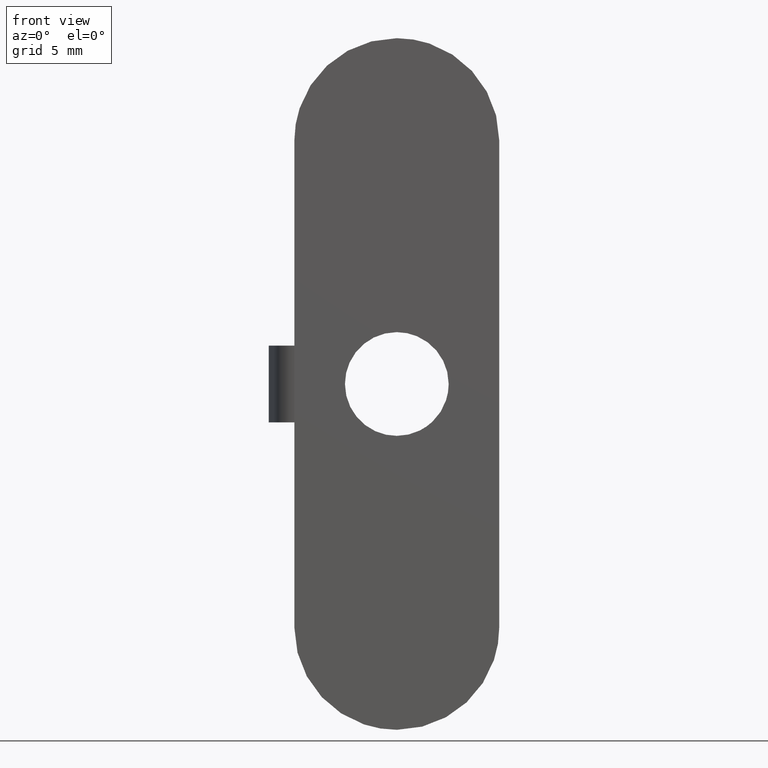
[diagram: clean part render]
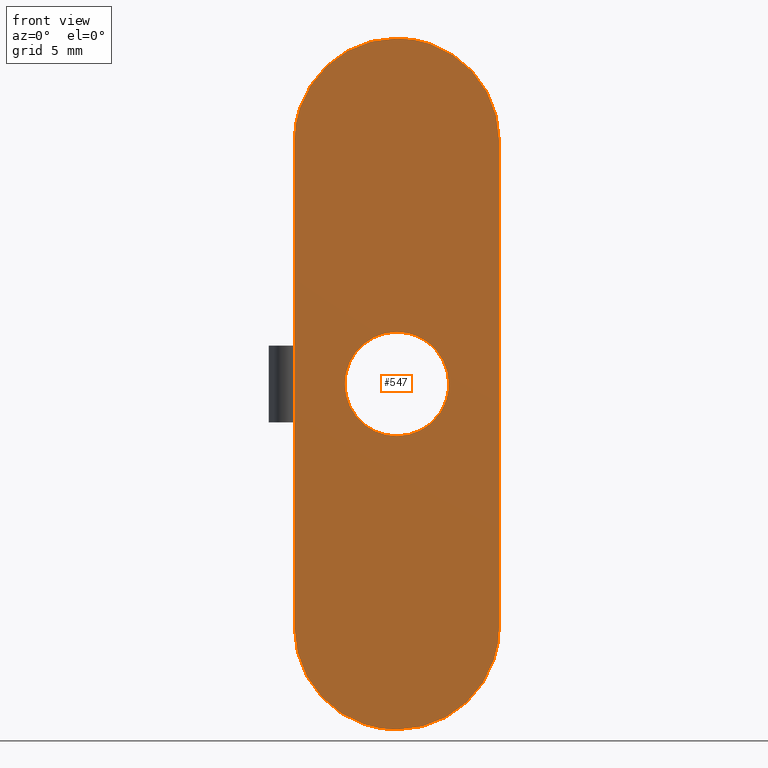
[diagram: same view with one face highlighted and labeled with its STEP entity id]
A machine part, front view. The second image highlights one B-rep face of the part: STEP entity #547.
In plain terms, the highlighted face is a freeform B-spline surface patch.
Its self-contained STEP definition (entity closure, byte-faithful):
#70=CARTESIAN_POINT('',(3.092400469154631,-1.599991000001859,2.615255294156009));
#71=VERTEX_POINT('',#70);
#72=CARTESIAN_POINT('',(0.0,-1.599990999999965,4.050000000000000));
#73=VERTEX_POINT('',#72);
#74=CARTESIAN_POINT('',(3.092400469154631,-1.599991000001859,2.615255294156009));
#75=CARTESIAN_POINT('',(2.820376977691375,-1.599991000001693,2.937277410438692));
#76=CARTESIAN_POINT('',(2.300836514893741,-1.599991000001375,3.385744414825498));
#77=CARTESIAN_POINT('',(1.493138806899813,-1.599991000000878,3.787413040616861));
#78=CARTESIAN_POINT('',(0.769694009481361,-1.599991000000438,3.999427392969075));
#79=CARTESIAN_POINT('',(0.274895964038809,-1.599991000000127,4.050034765647252));
#80=CARTESIAN_POINT('',(0.0,-1.599990999999965,4.050000000000000));
#81=B_SPLINE_CURVE_WITH_KNOTS('',3,(#74,#75,#76,#77,#78,#79,#80),.UNSPECIFIED.,.F.,.U.,(4,1,1,1,4),(0.000000015928992,1.264529401427014,2.034226246631516,2.693985453096188,3.518673681886411),.UNSPECIFIED.);
#82=EDGE_CURVE('',#71,#73,#81,.T.);
#84=CARTESIAN_POINT('',(-4.049999999999974,-1.599990999999965,-0.000000458331463));
#85=VERTEX_POINT('',#84);
#86=CARTESIAN_POINT('',(0.0,-1.599990999999965,4.050000000000000));
#87=CARTESIAN_POINT('',(-0.381054484313349,-1.599990999999965,4.050140602619687));
#88=CARTESIAN_POINT('',(-1.010515882282830,-1.599990999999965,3.960478360670183));
#89=CARTESIAN_POINT('',(-1.800263474168595,-1.599990999999965,3.650198816271311));
#90=CARTESIAN_POINT('',(-2.453598175635486,-1.599990999999961,3.253170430365296));
#91=CARTESIAN_POINT('',(-3.046438682187678,-1.599990999999966,2.715894467325104));
#92=CARTESIAN_POINT('',(-3.501115867815219,-1.599990999999963,2.078566816770383));
#93=CARTESIAN_POINT('',(-3.827842104405860,-1.599990999999986,1.387769674100269));
#94=CARTESIAN_POINT('',(-4.010294287966048,-1.599990999999902,0.712385562720853));
#95=CARTESIAN_POINT('',(-4.050008687073341,-1.599991000000036,0.215367743600465));
#96=CARTESIAN_POINT('',(-4.049999999999974,-1.599990999999965,-0.000000458331463));
#97=B_SPLINE_CURVE_WITH_KNOTS('',3,(#86,#87,#88,#89,#90,#91,#92,#93,#94,#95,#96),.UNSPECIFIED.,.F.,.U.,(4,1,1,1,1,1,1,1,4),(0.000000055227183,1.143122650493126,1.888650764688554,2.534773102149365,3.429381718679102,4.274308838590464,4.870726688445481,5.715652830963844,6.361765298970928),.UNSPECIFIED.);
#98=EDGE_CURVE('',#73,#85,#97,.T.);
#100=CARTESIAN_POINT('',(0.0,-1.599990999999965,-4.050000000000000));
#101=VERTEX_POINT('',#100);
#102=CARTESIAN_POINT('',(-4.049999999999974,-1.599990999999965,-0.000000458331463));
#103=CARTESIAN_POINT('',(-4.050201243229171,-1.599990999999974,-0.414195219986316));
#104=CARTESIAN_POINT('',(-3.937173920950953,-1.599990999999945,-1.143030930930646));
#105=CARTESIAN_POINT('',(-3.560234583896198,-1.599990999999985,-1.979403110114198));
#106=CARTESIAN_POINT('',(-3.143165495486218,-1.599990999999945,-2.579282978451702));
#107=CARTESIAN_POINT('',(-2.661637303840499,-1.599990999999951,-3.085117777227258));
#108=CARTESIAN_POINT('',(-2.078568684010875,-1.599991000000042,-3.501118182822238));
#109=CARTESIAN_POINT('',(-1.432818437939988,-1.599990999999898,-3.806521129870342));
#110=CARTESIAN_POINT('',(-0.762065598154865,-1.599990999999986,-4.001024033879598));
#111=CARTESIAN_POINT('',(-0.265070882309666,-1.599990999999965,-4.050037229062435));
#112=CARTESIAN_POINT('',(0.0,-1.599990999999965,-4.050000000000000));
#113=B_SPLINE_CURVE_WITH_KNOTS('',3,(#102,#103,#104,#105,#106,#107,#108,#109,#110,#111,#112),.UNSPECIFIED.,.F.,.U.,(4,1,1,1,1,1,1,1,4),(0.000000055387317,1.242531855871150,2.186866573110421,2.733573998402191,3.429381440726923,4.274308491726776,4.870726292973097,5.566556277256678,6.361764782321302),.UNSPECIFIED.);
#114=EDGE_CURVE('',#85,#101,#113,.T.);
#116=CARTESIAN_POINT('',(2.787835918983155,-1.599990999997954,-2.937766151683632));
#117=VERTEX_POINT('',#116);
#118=CARTESIAN_POINT('',(0.0,-1.599990999999965,-4.050000000000000));
#119=CARTESIAN_POINT('',(0.272254321299276,-1.599990999999766,-4.050041422317981));
#120=CARTESIAN_POINT('',(0.736667426263353,-1.599990999999435,-4.002980208834696));
#121=CARTESIAN_POINT('',(1.416976343417097,-1.599990999998945,-3.812625169096760));
#122=CARTESIAN_POINT('',(2.102919850558829,-1.599990999998443,-3.495560729496080));
#123=CARTESIAN_POINT('',(2.555550301668501,-1.599990999998125,-3.158303154968257));
#124=CARTESIAN_POINT('',(2.787835918983155,-1.599990999997954,-2.937766151683632));
#125=B_SPLINE_CURVE_WITH_KNOTS('',3,(#118,#119,#120,#121,#122,#123,#124),.UNSPECIFIED.,.F.,.U.,(4,1,1,1,4),(0.000000013875821,0.816757953015864,1.393299582913002,2.113960479790959,3.074851748193050),.UNSPECIFIED.);
#126=EDGE_CURVE('',#101,#117,#125,.T.);
#214=CARTESIAN_POINT('',(4.049999999999973,-1.599990999999965,0.000000458331472));
#215=VERTEX_POINT('',#214);
#216=CARTESIAN_POINT('',(4.049999999999973,-1.599990999999965,0.000000458331472));
#217=CARTESIAN_POINT('',(4.050147345321640,-1.599991000000244,0.385021680494588));
#218=CARTESIAN_POINT('',(3.962745837365865,-1.599991000000690,0.992037114315919));
#219=CARTESIAN_POINT('',(3.621113157875833,-1.599991000001318,1.879469827514581));
#220=CARTESIAN_POINT('',(3.312407704599532,-1.599991000001674,2.355261533687516));
#221=CARTESIAN_POINT('',(3.092400469154631,-1.599991000001859,2.615255294156009));
#222=B_SPLINE_CURVE_WITH_KNOTS('',3,(#216,#217,#218,#219,#220,#221),.UNSPECIFIED.,.F.,.U.,(4,1,1,4),(0.000000012530482,1.155009485333611,1.821353007942206,2.843092339355573),.UNSPECIFIED.);
#223=EDGE_CURVE('',#215,#71,#222,.T.);
#248=CARTESIAN_POINT('',(2.787835918983155,-1.599990999997954,-2.937766151683632));
#249=CARTESIAN_POINT('',(3.011403582672485,-1.599990999998101,-2.725693667472977));
#250=CARTESIAN_POINT('',(3.398666969683116,-1.599990999998413,-2.263382151183006));
#251=CARTESIAN_POINT('',(3.761295607858146,-1.599990999998897,-1.559207491373230));
#252=CARTESIAN_POINT('',(3.993044856083322,-1.599990999999419,-0.804578728298740));
#253=CARTESIAN_POINT('',(4.050066773174976,-1.599990999999753,-0.308152803475064));
#254=CARTESIAN_POINT('',(4.049999999999973,-1.599990999999965,0.000000458331472));
#255=B_SPLINE_CURVE_WITH_KNOTS('',3,(#248,#249,#250,#251,#252,#253,#254),.UNSPECIFIED.,.F.,.U.,(4,1,1,1,4),(0.000000016472933,0.924444961002549,1.797521033919546,2.362468849384825,3.286913793914511),.UNSPECIFIED.);
#256=EDGE_CURVE('',#117,#215,#255,.T.);
#275=CARTESIAN_POINT('',(-8.0,-1.600004125000085,3.0));
#276=VERTEX_POINT('',#275);
#339=CARTESIAN_POINT('',(-8.0,-1.600004125000085,-3.0));
#340=VERTEX_POINT('',#339);
#382=CARTESIAN_POINT('',(-8.0,-1.600004125000085,3.0));
#383=CARTESIAN_POINT('',(-8.0,-1.600004125000085,-3.0));
#384=QUASI_UNIFORM_CURVE('',1,(#382,#383),.UNSPECIFIED.,.F.,.U.);
#385=EDGE_CURVE('',#276,#340,#384,.T.);
#438=CARTESIAN_POINT('',(-8.799199968988896,-1.599991000000000,29.697299895337490));
#439=CARTESIAN_POINT('',(8.799200398142338,-1.599991000000000,29.697299895337490));
#440=CARTESIAN_POINT('',(-8.799199968988896,-1.599991000000000,-29.697301343730359));
#441=CARTESIAN_POINT('',(8.799200398142338,-1.599991000000000,-29.697301343730359));
#442=B_SPLINE_SURFACE_WITH_KNOTS('',1,1,((#438,#440),(#439,#441)),.UNSPECIFIED.,.F.,.F.,.U.,(2,2),(2,2),(0.0,17.598400367131230),(0.0,59.394601239067860),.UNSPECIFIED.);
#443=CARTESIAN_POINT('',(8.0,-1.599990999999965,19.0));
#444=VERTEX_POINT('',#443);
#445=CARTESIAN_POINT('',(8.0,-1.599990999999965,-19.0));
#446=VERTEX_POINT('',#445);
#447=CARTESIAN_POINT('',(8.0,-1.599990999999965,19.0));
#448=CARTESIAN_POINT('',(8.0,-1.599990999999965,-19.0));
#449=QUASI_UNIFORM_CURVE('',1,(#447,#448),.UNSPECIFIED.,.F.,.U.);
#450=EDGE_CURVE('',#444,#446,#449,.T.);
#451=ORIENTED_EDGE('',*,*,#450,.F.);
#452=CARTESIAN_POINT('',(-0.000000671420413,-1.599990999999965,26.999999999999979));
#453=VERTEX_POINT('',#452);
#454=CARTESIAN_POINT('',(8.0,-1.599990999999965,19.0));
#455=CARTESIAN_POINT('',(8.000055658176320,-1.599990999999967,19.523601726682081));
#456=CARTESIAN_POINT('',(7.900058436080794,-1.599990999999963,20.538051594862448));
#457=CARTESIAN_POINT('',(7.521515978707759,-1.599990999999972,21.814067541485230));
#458=CARTESIAN_POINT('',(6.957567482298716,-1.599990999999964,23.015969337826039));
#459=CARTESIAN_POINT('',(6.257013327467415,-1.599990999999957,24.050641715864302));
#460=CARTESIAN_POINT('',(5.308734373837774,-1.599990999999986,25.028422618844541));
#461=CARTESIAN_POINT('',(4.324430070476393,-1.599990999999913,25.767838439556130));
#462=CARTESIAN_POINT('',(3.210262216620889,-1.599991000000043,26.363364711971709));
#463=CARTESIAN_POINT('',(1.783427558124979,-1.599990999999904,26.859192141998982));
#464=CARTESIAN_POINT('',(0.670875504879247,-1.599990999999988,27.000181070990550));
#465=CARTESIAN_POINT('',(-0.000000671420413,-1.599990999999965,26.999999999999979));
#466=B_SPLINE_CURVE_WITH_KNOTS('',3,(#454,#455,#456,#457,#458,#459,#460,#461,#462,#463,#464,#465),.UNSPECIFIED.,.F.,.U.,(4,1,1,1,1,1,1,1,1,4),(0.000000037951718,1.570796537303250,3.043422620387393,3.976088266977515,5.546892700908940,6.774049362718611,8.050335254018872,9.228443648545097,10.553814228072291,12.566390705773090),.UNSPECIFIED.);
#467=EDGE_CURVE('',#444,#453,#466,.T.);
#468=ORIENTED_EDGE('',*,*,#467,.T.);
#469=CARTESIAN_POINT('',(-8.0,-1.599990999999965,19.0));
#470=VERTEX_POINT('',#469);
#471=CARTESIAN_POINT('',(-0.000000671420413,-1.599990999999965,26.999999999999979));
#472=CARTESIAN_POINT('',(-0.409058530334494,-1.599990999999967,27.000021492303130));
#473=CARTESIAN_POINT('',(-1.128997142312720,-1.599990999999961,26.944659344639899));
#474=CARTESIAN_POINT('',(-2.218660525742400,-1.599990999999967,26.710486490052840));
#475=CARTESIAN_POINT('',(-3.145530879441106,-1.599990999999970,26.378850672017400));
#476=CARTESIAN_POINT('',(-4.095356863511993,-1.599990999999963,25.897084283627049));
#477=CARTESIAN_POINT('',(-4.883322783046102,-1.599990999999969,25.363563316041908));
#478=CARTESIAN_POINT('',(-5.646387689577706,-1.599990999999961,24.692976438119072));
#479=CARTESIAN_POINT('',(-6.249944118269243,-1.599990999999970,24.022936347426349));
#480=CARTESIAN_POINT('',(-6.856391194409314,-1.599990999999968,23.167463483428559));
#481=CARTESIAN_POINT('',(-7.353571376795534,-1.599990999999963,22.223432441611699));
#482=CARTESIAN_POINT('',(-7.722798476186717,-1.599990999999968,21.171135533468910));
#483=CARTESIAN_POINT('',(-7.946885246248465,-1.599990999999961,20.112638819968112));
#484=CARTESIAN_POINT('',(-8.000017664104293,-1.599990999999973,19.392695676937169));
#485=CARTESIAN_POINT('',(-8.0,-1.599990999999965,19.0));
#486=B_SPLINE_CURVE_WITH_KNOTS('',3,(#471,#472,#473,#474,#475,#476,#477,#478,#479,#480,#481,#482,#483,#484,#485),.UNSPECIFIED.,.F.,.U.,(4,1,1,1,1,1,1,1,1,1,1,1,4),(0.000000038011205,1.227172697971893,2.159840542873159,3.337947909478849,4.172435515595490,5.350548260045036,6.185028635192336,7.215843494601299,8.050334768926938,9.326617916998785,10.406544262785321,11.388302338843920,12.566389948924650),.UNSPECIFIED.);
#487=EDGE_CURVE('',#453,#470,#486,.T.);
#488=ORIENTED_EDGE('',*,*,#487,.T.);
#489=CARTESIAN_POINT('',(-8.0,-1.600004125000085,3.0));
#490=CARTESIAN_POINT('',(-8.0,-1.599990999999965,19.0));
#491=QUASI_UNIFORM_CURVE('',1,(#489,#490),.UNSPECIFIED.,.F.,.U.);
#492=EDGE_CURVE('',#276,#470,#491,.T.);
#493=ORIENTED_EDGE('',*,*,#492,.F.);
#494=ORIENTED_EDGE('',*,*,#385,.T.);
#495=CARTESIAN_POINT('',(-8.0,-1.599990999999965,-19.0));
#496=VERTEX_POINT('',#495);
#497=CARTESIAN_POINT('',(-8.0,-1.599990999999965,-19.0));
#498=CARTESIAN_POINT('',(-8.0,-1.600004125000085,-3.0));
#499=QUASI_UNIFORM_CURVE('',1,(#497,#498),.UNSPECIFIED.,.F.,.U.);
#500=EDGE_CURVE('',#496,#340,#499,.T.);
#501=ORIENTED_EDGE('',*,*,#500,.F.);
#502=CARTESIAN_POINT('',(0.000000671420413,-1.599990999999965,-26.999999999999979));
#503=VERTEX_POINT('',#502);
#504=CARTESIAN_POINT('',(-8.0,-1.599990999999965,-19.0));
#505=CARTESIAN_POINT('',(-8.000055658176320,-1.599990999999967,-19.523601726682081));
#506=CARTESIAN_POINT('',(-7.900058436080794,-1.599990999999963,-20.538051594862448));
#507=CARTESIAN_POINT('',(-7.521515978707759,-1.599990999999972,-21.814067541485230));
#508=CARTESIAN_POINT('',(-6.957567482298716,-1.599990999999964,-23.015969337826039));
#509=CARTESIAN_POINT('',(-6.257013327467415,-1.599990999999957,-24.050641715864302));
#510=CARTESIAN_POINT('',(-5.308734373837774,-1.599990999999986,-25.028422618844541));
#511=CARTESIAN_POINT('',(-4.324430070476393,-1.599990999999913,-25.767838439556130));
#512=CARTESIAN_POINT('',(-3.210262216620889,-1.599991000000043,-26.363364711971709));
#513=CARTESIAN_POINT('',(-1.783427558124979,-1.599990999999904,-26.859192141998982));
#514=CARTESIAN_POINT('',(-0.670875504879247,-1.599990999999988,-27.000181070990550));
#515=CARTESIAN_POINT('',(0.000000671420413,-1.599990999999965,-26.999999999999979));
#516=B_SPLINE_CURVE_WITH_KNOTS('',3,(#504,#505,#506,#507,#508,#509,#510,#511,#512,#513,#514,#515),.UNSPECIFIED.,.F.,.U.,(4,1,1,1,1,1,1,1,1,4),(0.000000037951718,1.570796537303250,3.043422620387393,3.976088266977515,5.546892700908940,6.774049362718611,8.050335254018872,9.228443648545097,10.553814228072291,12.566390705773090),.UNSPECIFIED.);
#517=EDGE_CURVE('',#496,#503,#516,.T.);
#518=ORIENTED_EDGE('',*,*,#517,.T.);
#519=CARTESIAN_POINT('',(0.000000671420413,-1.599990999999965,-26.999999999999979));
#520=CARTESIAN_POINT('',(0.409058530334494,-1.599990999999967,-27.000021492303130));
#521=CARTESIAN_POINT('',(1.128997142312720,-1.599990999999961,-26.944659344639899));
#522=CARTESIAN_POINT('',(2.218660525742400,-1.599990999999967,-26.710486490052840));
#523=CARTESIAN_POINT('',(3.145530879441106,-1.599990999999970,-26.378850672017400));
#524=CARTESIAN_POINT('',(4.095356863511993,-1.599990999999963,-25.897084283627049));
#525=CARTESIAN_POINT('',(4.883322783046102,-1.599990999999969,-25.363563316041908));
#526=CARTESIAN_POINT('',(5.646387689577706,-1.599990999999961,-24.692976438119072));
#527=CARTESIAN_POINT('',(6.249944118269243,-1.599990999999970,-24.022936347426349));
#528=CARTESIAN_POINT('',(6.856391194409314,-1.599990999999968,-23.167463483428559));
#529=CARTESIAN_POINT('',(7.353571376795534,-1.599990999999963,-22.223432441611699));
#530=CARTESIAN_POINT('',(7.722798476186717,-1.599990999999968,-21.171135533468910));
#531=CARTESIAN_POINT('',(7.946885246248465,-1.599990999999961,-20.112638819968112));
#532=CARTESIAN_POINT('',(8.000017664104293,-1.599990999999973,-19.392695676937169));
#533=CARTESIAN_POINT('',(8.0,-1.599990999999965,-19.0));
#534=B_SPLINE_CURVE_WITH_KNOTS('',3,(#519,#520,#521,#522,#523,#524,#525,#526,#527,#528,#529,#530,#531,#532,#533),.UNSPECIFIED.,.F.,.U.,(4,1,1,1,1,1,1,1,1,1,1,1,4),(0.000000038011205,1.227172697971893,2.159840542873159,3.337947909478849,4.172435515595490,5.350548260045036,6.185028635192336,7.215843494601299,8.050334768926938,9.326617916998785,10.406544262785321,11.388302338843920,12.566389948924650),.UNSPECIFIED.);
#535=EDGE_CURVE('',#503,#446,#534,.T.);
#536=ORIENTED_EDGE('',*,*,#535,.T.);
#537=EDGE_LOOP('',(#451,#468,#488,#493,#494,#501,#518,#536));
#538=FACE_OUTER_BOUND('',#537,.T.);
#539=ORIENTED_EDGE('',*,*,#98,.F.);
#540=ORIENTED_EDGE('',*,*,#82,.F.);
#541=ORIENTED_EDGE('',*,*,#223,.F.);
#542=ORIENTED_EDGE('',*,*,#256,.F.);
#543=ORIENTED_EDGE('',*,*,#126,.F.);
#544=ORIENTED_EDGE('',*,*,#114,.F.);
#545=EDGE_LOOP('',(#539,#540,#541,#542,#543,#544));
#546=FACE_BOUND('',#545,.T.);
#547=ADVANCED_FACE('',(#538,#546),#442,.F.);